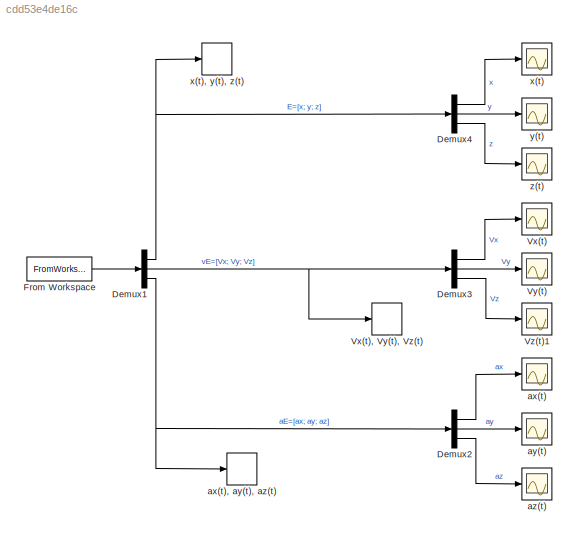
MODEL slx_cdd53e4de16c
KIND model
CONFIG AbsTol = auto
CONFIG FixedStep = auto
CONFIG MaxStep = auto
CONFIG MinStep = auto
CONFIG RelTol = 1e-3
CONFIG SampleTimeConstraint = Unconstrained
CONFIG Solver = ode45
CONFIG SolverMode = Auto
CONFIG SolverName = ode45
CONFIG StartTime = 0.0
CONFIG StopTime = 322
BLOCK [Demux] Demux1
  DisplayOption = bar
  Outputs = 3
  Ports = [1, 3]
BLOCK [Demux] Demux2
  DisplayOption = bar
  Outputs = 3
  Ports = [1, 3]
BLOCK [Demux] Demux3
  DisplayOption = bar
  Outputs = 3
  Ports = [1, 3]
BLOCK [Demux] Demux4
  DisplayOption = bar
  Outputs = 3
  Ports = [1, 3]
BLOCK [FromWorkspace] From Workspace
  SampleTime = 0.08
  VariableName = s
  ZeroCross = on
BLOCK [Scope] Vx(t)
  Floating = off
  NumInputPorts = 1
  Ports = [1]
  SaveName = ScopeData6
BLOCK [TimeScope] Vx(t), Vy(t), Vz(t)
  NumInputPorts = 1
  Ports = [1]
  ScopeSpecificationString = Simulink.scopes.TimeScopeBlockCfg('CurrentConfiguration', extmgr.ConfigurationSet(extmgr.Configuration('Core','General UI',true,'FigureColor',[1 1 1]),extmgr.Configuration('Core','Source UI',true),extmgr.Configuration('Sources','WiredSimulink',true,'DataLogging',true,'DataLoggingLimitDataPoints',true,'DataLoggingVariableName','Vxyz','DataLoggingDecimation','1','DataLoggingDecimateData',true,'DataL...<+2998ch>
BLOCK [Scope] Vy(t)
  Floating = off
  NumInputPorts = 1
  Ports = [1]
  SaveName = ScopeData7
BLOCK [Scope] Vz(t)1
  Floating = off
  NumInputPorts = 1
  Ports = [1]
  SampleInput = on
  SaveName = ScopeData8
  YMax = 20
BLOCK [Scope] ax(t)
  Floating = off
  NumInputPorts = 1
  Ports = [1]
  SaveName = ScopeData9
BLOCK [TimeScope] ax(t), ay(t), az(t)
  NumInputPorts = 1
  Ports = [1]
  ScopeSpecificationString = Simulink.scopes.TimeScopeBlockCfg('CurrentConfiguration', extmgr.ConfigurationSet(extmgr.Configuration('Core','General UI',true,'FigureColor',[1 1 1]),extmgr.Configuration('Core','Source UI',true),extmgr.Configuration('Sources','WiredSimulink',true,'DataLogging',true,'DataLoggingLimitDataPoints',true,'DataLoggingVariableName','axyz','DataLoggingDecimation','1','DataLoggingDecimateData',true,'DataL...<+2977ch>
BLOCK [Scope] ay(t)
  Floating = off
  NumInputPorts = 1
  Ports = [1]
  SaveName = ScopeData10
BLOCK [Scope] az(t)
  Floating = off
  NumInputPorts = 1
  Ports = [1]
  SaveName = ScopeData11
BLOCK [Scope] x(t)
  Floating = off
  NumInputPorts = 1
  Ports = [1]
  SaveName = ScopeData3
BLOCK [TimeScope] x(t), y(t), z(t)
  NumInputPorts = 1
  Ports = [1]
  ScopeSpecificationString = Simulink.scopes.TimeScopeBlockCfg('CurrentConfiguration', extmgr.ConfigurationSet(extmgr.Configuration('Core','General UI',true,'FigureColor',[0.8 0.8 0.8]),extmgr.Configuration('Core','Source UI',true),extmgr.Configuration('Sources','WiredSimulink',true,'DataLogging',true,'DataLoggingLimitDataPoints',true,'DataLoggingVariableName','XYZ','DataLoggingDecimation','1','DataLoggingDecimateData',true,'...<+2869ch>
BLOCK [Scope] y(t)
  Floating = off
  NumInputPorts = 1
  Ports = [1]
  SaveName = ScopeData4
BLOCK [Scope] z(t)
  Floating = off
  NumInputPorts = 1
  Ports = [1]
  SaveName = ScopeData5
NET Demux1:1 -> Demux4:1, x(t), y(t), z(t):1
NET Demux1:2 -> Demux3:1, Vx(t), Vy(t), Vz(t):1
NET Demux1:3 -> Demux2:1, ax(t), ay(t), az(t):1
LINE Demux2:1 -> ax(t):1
LINE Demux2:2 -> ay(t):1
LINE Demux2:3 -> az(t):1
LINE Demux3:1 -> Vx(t):1
LINE Demux3:2 -> Vy(t):1
LINE Demux3:3 -> Vz(t)1:1
LINE Demux4:1 -> x(t):1
LINE Demux4:2 -> y(t):1
LINE Demux4:3 -> z(t):1
LINE From Workspace:1 -> Demux1:1
note: NET lines group one-source signal fan-out (src -> all destinations, sorted); 1:1 wires keep LINE
